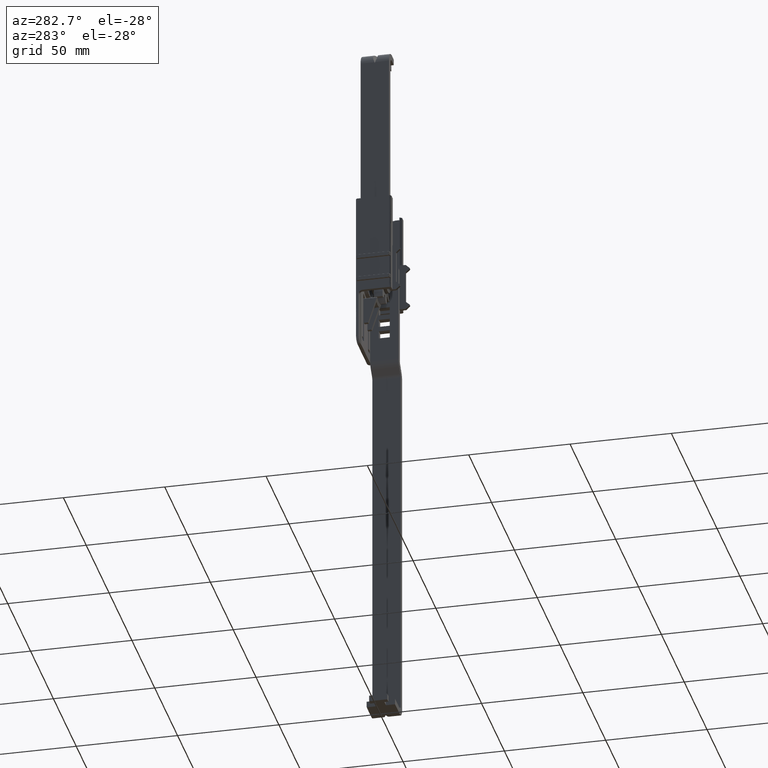
[diagram: clean part render]
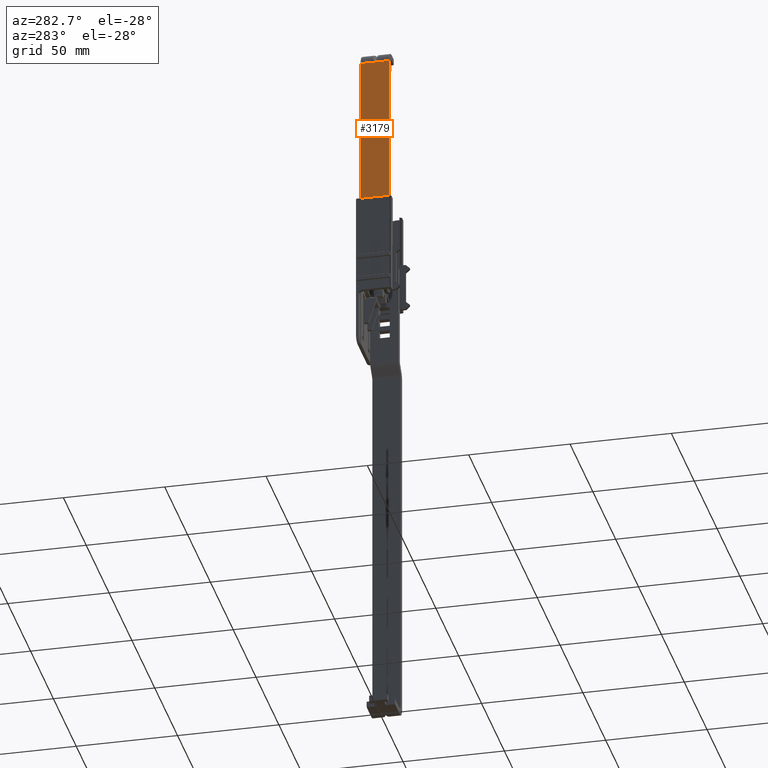
[diagram: same view with one face highlighted and labeled with its STEP entity id]
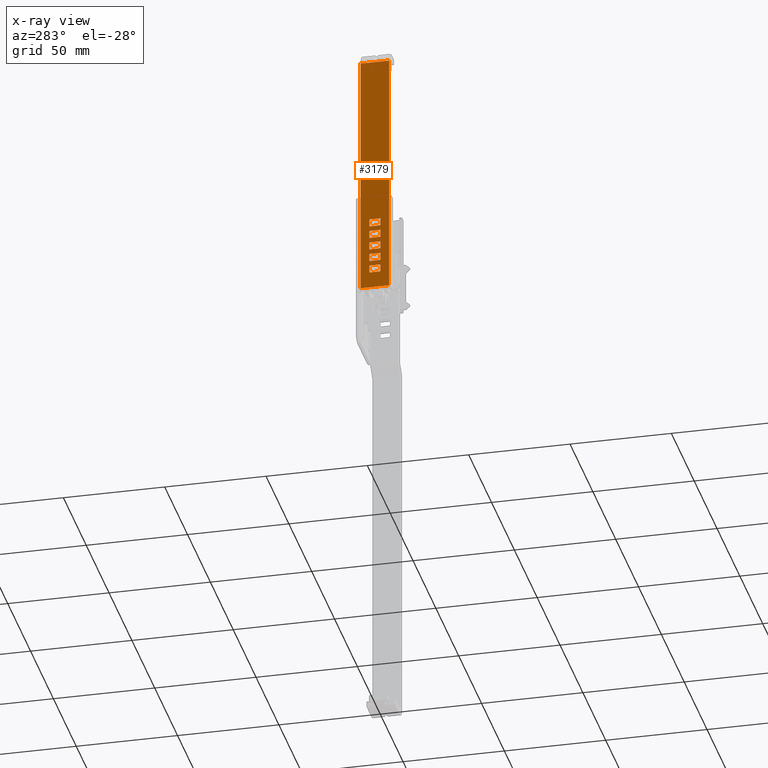
[diagram: x-ray of the same camera — body ghosted, the highlighted face saturated]
A machine part, auxiliary view. The second image highlights one B-rep face of the part: STEP entity #3179.
The next image is the same camera in x-ray: the body ghosted, the highlighted face saturated — about 0% of this face is hidden behind the body in this view.
In plain terms, the highlighted face is a freeform B-spline surface patch.
Its self-contained STEP definition (entity closure, byte-faithful):
#1835=CARTESIAN_POINT('',(-11.900000183749899,2.699999999999925,23.020002576783401));
#1836=VERTEX_POINT('',#1835);
#1842=CARTESIAN_POINT('',(-11.900000183749921,-2.700000000000000,23.020002576783401));
#1843=VERTEX_POINT('',#1842);
#1844=CARTESIAN_POINT('',(-11.900000183749899,2.699999999999925,23.020002576783401));
#1845=CARTESIAN_POINT('',(-11.900000183749921,-2.700000000000000,23.020002576783401));
#1846=QUASI_UNIFORM_CURVE('',1,(#1844,#1845),.UNSPECIFIED.,.F.,.U.);
#1847=EDGE_CURVE('',#1836,#1843,#1846,.T.);
#1869=CARTESIAN_POINT('',(-11.900000183749921,2.700000000000000,26.820002576783398));
#1870=VERTEX_POINT('',#1869);
#1876=CARTESIAN_POINT('',(-11.900000183749921,2.700000000000000,26.820002576783398));
#1877=CARTESIAN_POINT('',(-11.900000183749899,2.699999999999925,23.020002576783401));
#1878=QUASI_UNIFORM_CURVE('',1,(#1876,#1877),.UNSPECIFIED.,.F.,.U.);
#1879=EDGE_CURVE('',#1870,#1836,#1878,.T.);
#1897=CARTESIAN_POINT('',(-11.900000183749921,-2.700000000000000,26.820002576783398));
#1898=VERTEX_POINT('',#1897);
#1904=CARTESIAN_POINT('',(-11.900000183749921,-2.700000000000000,26.820002576783398));
#1905=CARTESIAN_POINT('',(-11.900000183749921,2.700000000000000,26.820002576783398));
#1906=QUASI_UNIFORM_CURVE('',1,(#1904,#1905),.UNSPECIFIED.,.F.,.U.);
#1907=EDGE_CURVE('',#1898,#1870,#1906,.T.);
#1924=CARTESIAN_POINT('',(-11.900000183749921,-2.700000000000000,23.020002576783401));
#1925=CARTESIAN_POINT('',(-11.900000183749921,-2.700000000000000,26.820002576783398));
#1926=QUASI_UNIFORM_CURVE('',1,(#1924,#1925),.UNSPECIFIED.,.F.,.U.);
#1927=EDGE_CURVE('',#1843,#1898,#1926,.T.);
#1947=CARTESIAN_POINT('',(-11.900000183749899,2.700000000000050,1.700002576783405));
#1948=VERTEX_POINT('',#1947);
#1954=CARTESIAN_POINT('',(-11.900000183749921,2.700000000000000,-2.099997423216601));
#1955=VERTEX_POINT('',#1954);
#1956=CARTESIAN_POINT('',(-11.900000183749899,2.700000000000050,1.700002576783405));
#1957=CARTESIAN_POINT('',(-11.900000183749921,2.700000000000000,-2.099997423216601));
#1958=QUASI_UNIFORM_CURVE('',1,(#1956,#1957),.UNSPECIFIED.,.F.,.U.);
#1959=EDGE_CURVE('',#1948,#1955,#1958,.T.);
#1981=CARTESIAN_POINT('',(-11.900000183749921,-2.700000000000000,1.700002576783400));
#1982=VERTEX_POINT('',#1981);
#1988=CARTESIAN_POINT('',(-11.900000183749921,-2.700000000000000,1.700002576783400));
#1989=CARTESIAN_POINT('',(-11.900000183749899,2.700000000000050,1.700002576783405));
#1990=QUASI_UNIFORM_CURVE('',1,(#1988,#1989),.UNSPECIFIED.,.F.,.U.);
#1991=EDGE_CURVE('',#1982,#1948,#1990,.T.);
#2009=CARTESIAN_POINT('',(-11.900000183749921,-2.700000000000000,-2.099997423216601));
#2010=VERTEX_POINT('',#2009);
#2016=CARTESIAN_POINT('',(-11.900000183749921,-2.700000000000000,-2.099997423216601));
#2017=CARTESIAN_POINT('',(-11.900000183749921,-2.700000000000000,1.700002576783400));
#2018=QUASI_UNIFORM_CURVE('',1,(#2016,#2017),.UNSPECIFIED.,.F.,.U.);
#2019=EDGE_CURVE('',#2010,#1982,#2018,.T.);
#2036=CARTESIAN_POINT('',(-11.900000183749921,2.700000000000000,-2.099997423216601));
#2037=CARTESIAN_POINT('',(-11.900000183749921,-2.700000000000000,-2.099997423216601));
#2038=QUASI_UNIFORM_CURVE('',1,(#2036,#2037),.UNSPECIFIED.,.F.,.U.);
#2039=EDGE_CURVE('',#1955,#2010,#2038,.T.);
#2059=CARTESIAN_POINT('',(-11.900000183749899,2.699999999999925,4.180002576783400));
#2060=VERTEX_POINT('',#2059);
#2066=CARTESIAN_POINT('',(-11.900000183749921,-2.700000000000000,4.180002576783400));
#2067=VERTEX_POINT('',#2066);
#2068=CARTESIAN_POINT('',(-11.900000183749921,-2.700000000000000,4.180002576783400));
#2069=CARTESIAN_POINT('',(-11.900000183749899,2.699999999999925,4.180002576783400));
#2070=QUASI_UNIFORM_CURVE('',1,(#2068,#2069),.UNSPECIFIED.,.F.,.U.);
#2071=EDGE_CURVE('',#2067,#2060,#2070,.T.);
#2094=CARTESIAN_POINT('',(-11.900000183749921,-2.700000000000000,7.980002576783400));
#2095=VERTEX_POINT('',#2094);
#2096=CARTESIAN_POINT('',(-11.900000183749921,-2.700000000000000,7.980002576783400));
#2097=CARTESIAN_POINT('',(-11.900000183749921,-2.700000000000000,4.180002576783400));
#2098=QUASI_UNIFORM_CURVE('',1,(#2096,#2097),.UNSPECIFIED.,.F.,.U.);
#2099=EDGE_CURVE('',#2095,#2067,#2098,.T.);
#2122=CARTESIAN_POINT('',(-11.900000183749921,2.700000000000000,7.980002576783400));
#2123=VERTEX_POINT('',#2122);
#2124=CARTESIAN_POINT('',(-11.900000183749921,2.700000000000000,7.980002576783400));
#2125=CARTESIAN_POINT('',(-11.900000183749921,-2.700000000000000,7.980002576783400));
#2126=QUASI_UNIFORM_CURVE('',1,(#2124,#2125),.UNSPECIFIED.,.F.,.U.);
#2127=EDGE_CURVE('',#2123,#2095,#2126,.T.);
#2148=CARTESIAN_POINT('',(-11.900000183749899,2.699999999999925,4.180002576783400));
#2149=CARTESIAN_POINT('',(-11.900000183749921,2.700000000000000,7.980002576783400));
#2150=QUASI_UNIFORM_CURVE('',1,(#2148,#2149),.UNSPECIFIED.,.F.,.U.);
#2151=EDGE_CURVE('',#2060,#2123,#2150,.T.);
#2171=CARTESIAN_POINT('',(-11.900000183749899,2.699999999999925,10.460002576783401));
#2172=VERTEX_POINT('',#2171);
#2178=CARTESIAN_POINT('',(-11.900000183749921,-2.700000000000000,10.460002576783401));
#2179=VERTEX_POINT('',#2178);
#2180=CARTESIAN_POINT('',(-11.900000183749921,-2.700000000000000,10.460002576783401));
#2181=CARTESIAN_POINT('',(-11.900000183749899,2.699999999999925,10.460002576783401));
#2182=QUASI_UNIFORM_CURVE('',1,(#2180,#2181),.UNSPECIFIED.,.F.,.U.);
#2183=EDGE_CURVE('',#2179,#2172,#2182,.T.);
#2206=CARTESIAN_POINT('',(-11.900000183749921,-2.700000000000000,14.260002576783400));
#2207=VERTEX_POINT('',#2206);
#2208=CARTESIAN_POINT('',(-11.900000183749921,-2.700000000000000,14.260002576783400));
#2209=CARTESIAN_POINT('',(-11.900000183749921,-2.700000000000000,10.460002576783401));
#2210=QUASI_UNIFORM_CURVE('',1,(#2208,#2209),.UNSPECIFIED.,.F.,.U.);
#2211=EDGE_CURVE('',#2207,#2179,#2210,.T.);
#2234=CARTESIAN_POINT('',(-11.900000183749921,2.700000000000000,14.260002576783400));
#2235=VERTEX_POINT('',#2234);
#2236=CARTESIAN_POINT('',(-11.900000183749921,2.700000000000000,14.260002576783400));
#2237=CARTESIAN_POINT('',(-11.900000183749921,-2.700000000000000,14.260002576783400));
#2238=QUASI_UNIFORM_CURVE('',1,(#2236,#2237),.UNSPECIFIED.,.F.,.U.);
#2239=EDGE_CURVE('',#2235,#2207,#2238,.T.);
#2260=CARTESIAN_POINT('',(-11.900000183749899,2.699999999999925,10.460002576783401));
#2261=CARTESIAN_POINT('',(-11.900000183749921,2.700000000000000,14.260002576783400));
#2262=QUASI_UNIFORM_CURVE('',1,(#2260,#2261),.UNSPECIFIED.,.F.,.U.);
#2263=EDGE_CURVE('',#2172,#2235,#2262,.T.);
#2283=CARTESIAN_POINT('',(-11.900000183749899,2.699999999999925,16.740002576783400));
#2284=VERTEX_POINT('',#2283);
#2290=CARTESIAN_POINT('',(-11.900000183749921,-2.700000000000000,16.740002576783400));
#2291=VERTEX_POINT('',#2290);
#2292=CARTESIAN_POINT('',(-11.900000183749921,-2.700000000000000,16.740002576783400));
#2293=CARTESIAN_POINT('',(-11.900000183749899,2.699999999999925,16.740002576783400));
#2294=QUASI_UNIFORM_CURVE('',1,(#2292,#2293),.UNSPECIFIED.,.F.,.U.);
#2295=EDGE_CURVE('',#2291,#2284,#2294,.T.);
#2318=CARTESIAN_POINT('',(-11.900000183749921,-2.700000000000000,20.540002576783401));
#2319=VERTEX_POINT('',#2318);
#2320=CARTESIAN_POINT('',(-11.900000183749921,-2.700000000000000,20.540002576783401));
#2321=CARTESIAN_POINT('',(-11.900000183749921,-2.700000000000000,16.740002576783400));
#2322=QUASI_UNIFORM_CURVE('',1,(#2320,#2321),.UNSPECIFIED.,.F.,.U.);
#2323=EDGE_CURVE('',#2319,#2291,#2322,.T.);
#2346=CARTESIAN_POINT('',(-11.900000183749921,2.700000000000000,20.540002576783401));
#2347=VERTEX_POINT('',#2346);
#2348=CARTESIAN_POINT('',(-11.900000183749921,2.700000000000000,20.540002576783401));
#2349=CARTESIAN_POINT('',(-11.900000183749921,-2.700000000000000,20.540002576783401));
#2350=QUASI_UNIFORM_CURVE('',1,(#2348,#2349),.UNSPECIFIED.,.F.,.U.);
#2351=EDGE_CURVE('',#2347,#2319,#2350,.T.);
#2372=CARTESIAN_POINT('',(-11.900000183749899,2.699999999999925,16.740002576783400));
#2373=CARTESIAN_POINT('',(-11.900000183749921,2.700000000000000,20.540002576783401));
#2374=QUASI_UNIFORM_CURVE('',1,(#2372,#2373),.UNSPECIFIED.,.F.,.U.);
#2375=EDGE_CURVE('',#2284,#2347,#2374,.T.);
#2386=CARTESIAN_POINT('',(-11.900000183749899,0.140088754946546,112.300008385721600));
#2387=VERTEX_POINT('',#2386);
#2405=CARTESIAN_POINT('',(-11.900000183749921,-9.596598E-014,111.956862417400600));
#2406=VERTEX_POINT('',#2405);
#2407=CARTESIAN_POINT('',(-11.900000183749921,-9.596598E-014,111.956862417400600));
#2408=CARTESIAN_POINT('',(-11.900000183749899,0.140088754946546,112.300008385721600));
#2409=QUASI_UNIFORM_CURVE('',1,(#2407,#2408),.UNSPECIFIED.,.F.,.U.);
#2410=EDGE_CURVE('',#2406,#2387,#2409,.T.);
#2440=CARTESIAN_POINT('',(-11.900000183749899,-0.140088754946560,112.300008385721600));
#2441=VERTEX_POINT('',#2440);
#2442=CARTESIAN_POINT('',(-11.900000183749921,-9.596598E-014,111.956862417400600));
#2443=CARTESIAN_POINT('',(-11.900000183749899,-0.140088754946560,112.300008385721600));
#2444=QUASI_UNIFORM_CURVE('',1,(#2442,#2443),.UNSPECIFIED.,.F.,.U.);
#2445=EDGE_CURVE('',#2406,#2441,#2444,.T.);
#2831=CARTESIAN_POINT('',(-11.900000183749899,7.000000332482160,-10.199997423216599));
#2832=VERTEX_POINT('',#2831);
#2838=CARTESIAN_POINT('',(-11.900000183749899,7.000000332482160,112.300008385721600));
#2839=VERTEX_POINT('',#2838);
#2840=CARTESIAN_POINT('',(-11.900000183749899,7.000000332482160,112.300008385721600));
#2841=CARTESIAN_POINT('',(-11.900000183749899,7.000000332482160,-10.199997423216599));
#2842=QUASI_UNIFORM_CURVE('',1,(#2840,#2841),.UNSPECIFIED.,.F.,.U.);
#2843=EDGE_CURVE('',#2839,#2832,#2842,.T.);
#2866=CARTESIAN_POINT('',(-11.900000183749899,-7.000000332482160,-10.199997423216599));
#2867=VERTEX_POINT('',#2866);
#2875=CARTESIAN_POINT('',(-11.900000183749899,7.000000332482160,-10.199997423216599));
#2876=CARTESIAN_POINT('',(-11.900000183749899,-7.000000332482160,-10.199997423216599));
#2877=QUASI_UNIFORM_CURVE('',1,(#2875,#2876),.UNSPECIFIED.,.F.,.U.);
#2878=EDGE_CURVE('',#2832,#2867,#2877,.T.);
#2904=CARTESIAN_POINT('',(-11.900000183749899,-7.000000332482160,112.300008385721600));
#2905=VERTEX_POINT('',#2904);
#2906=CARTESIAN_POINT('',(-11.900000183749899,-0.140088754946560,112.300008385721600));
#2907=CARTESIAN_POINT('',(-11.900000183749899,-7.000000332482160,112.300008385721600));
#2908=QUASI_UNIFORM_CURVE('',1,(#2906,#2907),.UNSPECIFIED.,.F.,.U.);
#2909=EDGE_CURVE('',#2441,#2905,#2908,.T.);
#2982=CARTESIAN_POINT('',(-11.900000183749899,-7.000000332482160,112.300008385721600));
#2983=CARTESIAN_POINT('',(-11.900000183749899,-7.000000332482160,-10.199997423216599));
#2984=QUASI_UNIFORM_CURVE('',1,(#2982,#2983),.UNSPECIFIED.,.F.,.U.);
#2985=EDGE_CURVE('',#2905,#2867,#2984,.T.);
#3124=CARTESIAN_POINT('',(-11.900000183749899,7.000000332482160,112.300008385721600));
#3125=CARTESIAN_POINT('',(-11.900000183749899,0.140088754946546,112.300008385721600));
#3126=QUASI_UNIFORM_CURVE('',1,(#3124,#3125),.UNSPECIFIED.,.F.,.U.);
#3127=EDGE_CURVE('',#2839,#2387,#3126,.T.);
#3135=CARTESIAN_POINT('',(-11.900000183749899,-7.699300469984402,-16.318872475944278));
#3136=CARTESIAN_POINT('',(-11.900000183749899,-7.699300469984402,118.418886724155500));
#3137=CARTESIAN_POINT('',(-11.900000183749899,7.699300720323921,-16.318872475944278));
#3138=CARTESIAN_POINT('',(-11.900000183749899,7.699300720323921,118.418886724155500));
#3139=B_SPLINE_SURFACE_WITH_KNOTS('',1,1,((#3135,#3137),(#3136,#3138)),.UNSPECIFIED.,.F.,.F.,.U.,(2,2),(2,2),(0.0,134.737759200099790),(0.0,15.398601190308320),.UNSPECIFIED.);
#3140=ORIENTED_EDGE('',*,*,#2445,.F.);
#3141=ORIENTED_EDGE('',*,*,#2410,.T.);
#3142=ORIENTED_EDGE('',*,*,#3127,.F.);
#3143=ORIENTED_EDGE('',*,*,#2843,.T.);
#3144=ORIENTED_EDGE('',*,*,#2878,.T.);
#3145=ORIENTED_EDGE('',*,*,#2985,.F.);
#3146=ORIENTED_EDGE('',*,*,#2909,.F.);
#3147=EDGE_LOOP('',(#3140,#3141,#3142,#3143,#3144,#3145,#3146));
#3148=FACE_OUTER_BOUND('',#3147,.T.);
#3149=ORIENTED_EDGE('',*,*,#2151,.T.);
#3150=ORIENTED_EDGE('',*,*,#2127,.T.);
#3151=ORIENTED_EDGE('',*,*,#2099,.T.);
#3152=ORIENTED_EDGE('',*,*,#2071,.T.);
#3153=EDGE_LOOP('',(#3149,#3150,#3151,#3152));
#3154=FACE_BOUND('',#3153,.T.);
#3155=ORIENTED_EDGE('',*,*,#2263,.T.);
#3156=ORIENTED_EDGE('',*,*,#2239,.T.);
#3157=ORIENTED_EDGE('',*,*,#2211,.T.);
#3158=ORIENTED_EDGE('',*,*,#2183,.T.);
#3159=EDGE_LOOP('',(#3155,#3156,#3157,#3158));
#3160=FACE_BOUND('',#3159,.T.);
#3161=ORIENTED_EDGE('',*,*,#2375,.T.);
#3162=ORIENTED_EDGE('',*,*,#2351,.T.);
#3163=ORIENTED_EDGE('',*,*,#2323,.T.);
#3164=ORIENTED_EDGE('',*,*,#2295,.T.);
#3165=EDGE_LOOP('',(#3161,#3162,#3163,#3164));
#3166=FACE_BOUND('',#3165,.T.);
#3167=ORIENTED_EDGE('',*,*,#2019,.F.);
#3168=ORIENTED_EDGE('',*,*,#2039,.F.);
#3169=ORIENTED_EDGE('',*,*,#1959,.F.);
#3170=ORIENTED_EDGE('',*,*,#1991,.F.);
#3171=EDGE_LOOP('',(#3167,#3168,#3169,#3170));
#3172=FACE_BOUND('',#3171,.T.);
#3173=ORIENTED_EDGE('',*,*,#1907,.F.);
#3174=ORIENTED_EDGE('',*,*,#1927,.F.);
#3175=ORIENTED_EDGE('',*,*,#1847,.F.);
#3176=ORIENTED_EDGE('',*,*,#1879,.F.);
#3177=EDGE_LOOP('',(#3173,#3174,#3175,#3176));
#3178=FACE_BOUND('',#3177,.T.);
#3179=ADVANCED_FACE('',(#3148,#3154,#3160,#3166,#3172,#3178),#3139,.T.);